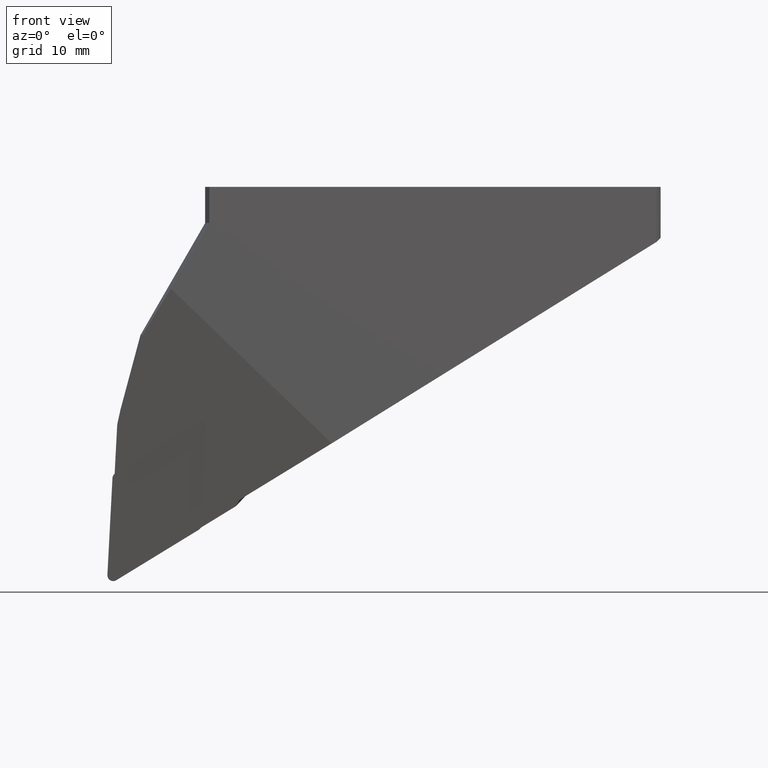
[diagram: clean part render]
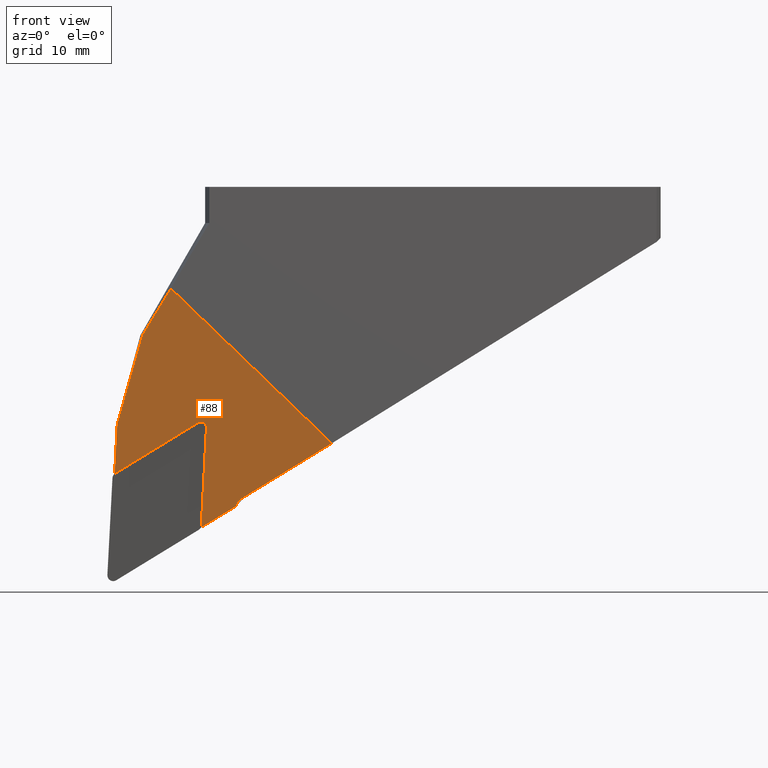
[diagram: same view with one face highlighted and labeled with its STEP entity id]
A machine part, front view. The second image highlights one B-rep face of the part: STEP entity #88.
In plain terms, the highlighted planar face has unit normal (0.1115, 0.987, 0.1159).
Its self-contained STEP definition (entity closure, byte-faithful):
#88=ADVANCED_FACE('',(#132),#133,.F.);
#132=FACE_OUTER_BOUND('',#192,.T.);
#133=PLANE('',#193);
#192=EDGE_LOOP('',(#331,#332,#333,#334,#335,#336,#337,#338,#339,#340,#341,#342));
#193=AXIS2_PLACEMENT_3D('',#343,#344,#345);
#331=ORIENTED_EDGE('',*,*,#501,.T.);
#332=ORIENTED_EDGE('',*,*,#504,.T.);
#333=ORIENTED_EDGE('',*,*,#506,.T.);
#334=ORIENTED_EDGE('',*,*,#508,.T.);
#335=ORIENTED_EDGE('',*,*,#510,.T.);
#336=ORIENTED_EDGE('',*,*,#516,.T.);
#337=ORIENTED_EDGE('',*,*,#517,.T.);
#338=ORIENTED_EDGE('',*,*,#518,.T.);
#339=ORIENTED_EDGE('',*,*,#519,.T.);
#340=ORIENTED_EDGE('',*,*,#520,.T.);
#341=ORIENTED_EDGE('',*,*,#521,.T.);
#342=ORIENTED_EDGE('',*,*,#511,.T.);
#343=CARTESIAN_POINT('',(-29.3810164501964,-4.3997327054566,-34.2880245251443));
#344=DIRECTION('',(0.111468932180646,0.986981129763168,0.115943635659434));
#345=DIRECTION('',(0.0,-0.11667073712445,0.993170649535535));
#501=EDGE_CURVE('',#600,#598,#601,.T.);
#504=EDGE_CURVE('',#598,#603,#605,.T.);
#506=EDGE_CURVE('',#603,#606,#608,.T.);
#508=EDGE_CURVE('',#606,#609,#611,.T.);
#510=EDGE_CURVE('',#609,#612,#614,.T.);
#511=EDGE_CURVE('',#615,#600,#616,.T.);
#516=EDGE_CURVE('',#612,#624,#625,.T.);
#517=EDGE_CURVE('',#624,#626,#627,.T.);
#518=EDGE_CURVE('',#626,#628,#629,.T.);
#519=EDGE_CURVE('',#628,#630,#631,.T.);
#520=EDGE_CURVE('',#630,#632,#633,.T.);
#521=EDGE_CURVE('',#632,#615,#634,.T.);
#598=VERTEX_POINT('',#744);
#600=VERTEX_POINT('',#747);
#601=CIRCLE('',#748,0.79999999991267);
#603=VERTEX_POINT('',#751);
#605=LINE('',#754,#755);
#606=VERTEX_POINT('',#756);
#608=CIRCLE('',#759,0.799999998553734);
#609=VERTEX_POINT('',#760);
#611=LINE('',#763,#764);
#612=VERTEX_POINT('',#765);
#614=CIRCLE('',#768,0.800000000088561);
#615=VERTEX_POINT('',#769);
#616=LINE('',#770,#771);
#624=VERTEX_POINT('',#798);
#625=LINE('',#799,#800);
#626=VERTEX_POINT('',#801);
#627=LINE('',#802,#803);
#628=VERTEX_POINT('',#804);
#629=LINE('',#805,#806);
#630=VERTEX_POINT('',#807);
#631=LINE('',#808,#809);
#632=VERTEX_POINT('',#810);
#633=CIRCLE('',#811,851.750416219717);
#634=CIRCLE('',#812,1553.36119460655);
#744=CARTESIAN_POINT('',(-43.9565129397566,-2.12501296911783,-39.6388177967516));
#747=CARTESIAN_POINT('',(-44.0211477522408,-2.11253034483307,-39.6829370022654));
#748=AXIS2_PLACEMENT_3D('',#972,#973,#974);
#751=CARTESIAN_POINT('',(-32.5369070666313,-4.23502265812108,-32.6560414722223));
#754=CARTESIAN_POINT('',(-31.7597939150436,-4.37861047520685,-32.1808580572537));
#755=VECTOR('',#977,10.0);
#756=CARTESIAN_POINT('',(-31.3216551008678,-4.2863720342918,-33.387275861814));
#759=AXIS2_PLACEMENT_3D('',#979,#980,#981);
#760=CARTESIAN_POINT('',(-32.0257846428447,-2.62913513685027,-46.817706676792));
#763=CARTESIAN_POINT('',(-31.6939349135189,-3.4101755322022,-40.4880690675454));
#764=VECTOR('',#983,10.0);
#765=CARTESIAN_POINT('',(-32.1165114555033,-2.5803653607483,-47.1456386721271));
#768=AXIS2_PLACEMENT_3D('',#985,#986,#987);
#769=CARTESIAN_POINT('',(-43.6636216158654,-2.95327920697773,-32.8697108974833));
#770=CARTESIAN_POINT('',(-43.6636216158654,-2.95327920697773,-32.8697108974833));
#771=VECTOR('',#988,20.2758543192298);
#798=CARTESIAN_POINT('',(-27.2922103575996,-3.47171817841497,-44.1960268443463));
#799=CARTESIAN_POINT('',(-25.8218237016806,-3.74339137256578,-43.2970220385322));
#800=VECTOR('',#993,10.0);
#801=CARTESIAN_POINT('',(-26.7460524175475,-3.64141581830545,-43.2765393248173));
#802=CARTESIAN_POINT('',(-25.1264088869486,-4.14465794746009,-40.5497786146653));
#803=VECTOR('',#994,10.0);
#804=CARTESIAN_POINT('',(-13.9806019340526,-6.00000000000001,-35.471652571495));
#805=CARTESIAN_POINT('',(8.15941779780706,-10.0906586406399,-21.9350878457213));
#806=VECTOR('',#995,10.0);
#807=CARTESIAN_POINT('',(-36.2425967529812,-6.00000000000001,-14.0688323428269));
#808=CARTESIAN_POINT('',(-13.7728570080406,-6.00000000000001,-35.6713798349778));
#809=VECTOR('',#996,31.1698454015415);
#810=CARTESIAN_POINT('',(-40.162906076319,-4.80175454409946,-20.5));
#811=AXIS2_PLACEMENT_3D('',#997,#998,#999);
#812=AXIS2_PLACEMENT_3D('',#1000,#1001,#1002);
#972=CARTESIAN_POINT('',(-43.5351877292246,-2.09279782969725,-40.3181168852409));
#973=DIRECTION('',(0.111468932180646,0.986981129763168,0.115943635659434));
#974=DIRECTION('',(-0.526656513222582,-0.0402689242801198,0.849123860704405));
#977=DIRECTION('',(0.842738152832026,-0.155713400928575,0.51531130642799));
#979=CARTESIAN_POINT('',(-32.1155818568149,-4.20280751875522,-33.3353405595578));
#980=DIRECTION('',(0.111468932180646,0.986981129763168,0.115943635659434));
#981=DIRECTION('',(0.992408446727965,-0.104455644609561,-0.0649191279376823));
#983=DIRECTION('',(-0.0519629868220282,0.122299909219774,-0.991131969116812));
#985=CARTESIAN_POINT('',(-32.8197114003149,-2.54557062115339,-46.765771374436));
#986=DIRECTION('',(0.111468932180646,0.986981129763168,0.115943635659434));
#987=DIRECTION('',(0.526656513222571,0.0402689242801218,-0.849123860704412));
#988=DIRECTION('',(-0.0520097943301793,0.122304835799642,-0.991128906063059));
#993=DIRECTION('',(0.842762991866435,-0.155711501454945,0.515271256577525));
#994=DIRECTION('',(0.50437534285266,-0.156715299777362,0.849144174058772));
#995=DIRECTION('',(0.842762991866433,-0.155711501454946,0.515271256577528));
#996=DIRECTION('',(-0.720880692716858,0.0,0.693059179917605));
#997=CARTESIAN_POINT('',(686.200839680964,-34.6992954911997,-464.324985129529));
#998=DIRECTION('',(-0.111468932179869,-0.9869811297632,-0.115943635659911));
#999=DIRECTION('',(-0.84818677241196,0.0336944895414017,0.52862451747902));
#1000=CARTESIAN_POINT('',(1443.88867105204,-120.243633116181,-464.566537811697));
#1001=DIRECTION('',(-0.111468932180732,-0.986981129763161,-0.115943635659408));
#1002=DIRECTION('',(-0.955380874893204,0.0743174729566501,0.285874617798841));